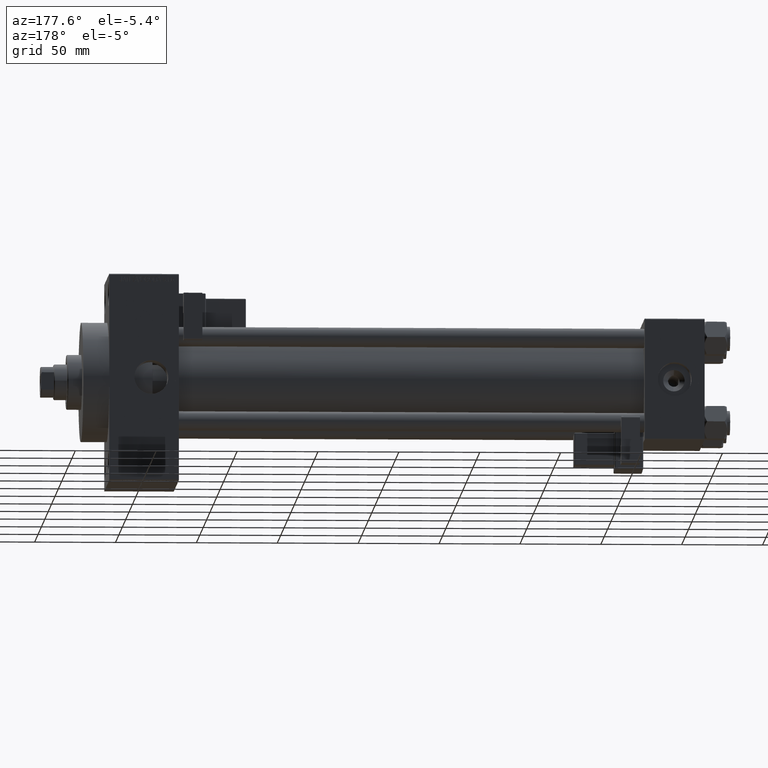
[diagram: clean part render]
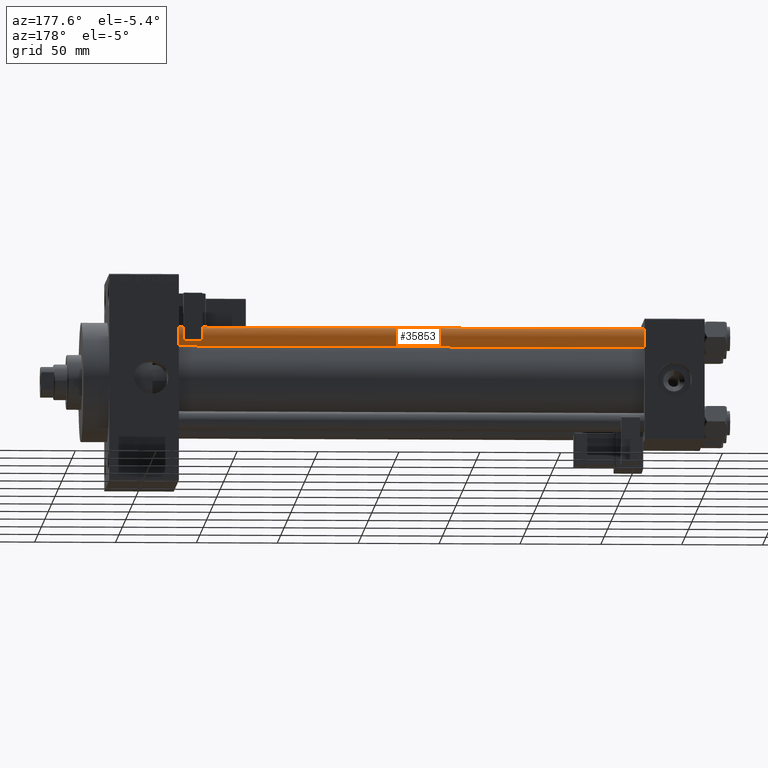
[diagram: same view with one face highlighted and labeled with its STEP entity id]
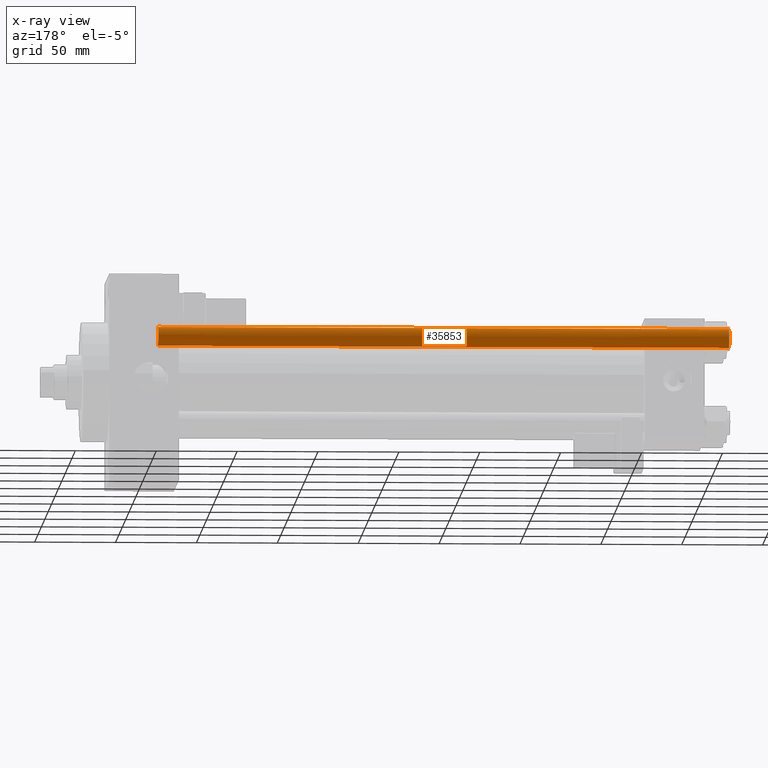
[diagram: x-ray of the same camera — body ghosted, the highlighted face saturated]
A machine part, auxiliary view. The second image highlights one B-rep face of the part: STEP entity #35853.
The next image is the same camera in x-ray: the body ghosted, the highlighted face saturated — about 0% of this face is hidden behind the body in this view.
In plain terms, the highlighted cylindrical surface (edge-blend (fillet) strip) has radius 6 mm, axis along (-1, -0, 0).
Its self-contained STEP definition (entity closure, byte-faithful):
#1677 = EDGE_CURVE ( 'NONE', #22605, #45160, #37135, .T. ) ;
#2137 = CARTESIAN_POINT ( 'NONE',  ( -6.000000000000000888, 0.000000000000000000, 354.0000000000000000 ) ) ;
#2474 = DIRECTION ( 'NONE',  ( 0.000000000000000000, 0.000000000000000000, -1.000000000000000000 ) ) ;
#2606 = CYLINDRICAL_SURFACE ( 'NONE', #43205, 6.000000000000000888 ) ;
#3254 = VECTOR ( 'NONE', #36420, 1000.000000000000000 ) ;
#3346 = CARTESIAN_POINT ( 'NONE',  ( 0.000000000000000000, 0.000000000000000000, 0.5000000000000559552 ) ) ;
#3447 = CARTESIAN_POINT ( 'NONE',  ( 6.000000000000000888, 7.347880794884120722E-16, 0.5000000000000559552 ) ) ;
#4390 = LINE ( 'NONE', #28349, #3254 ) ;
#5996 = CARTESIAN_POINT ( 'NONE',  ( 0.000000000000000000, 0.000000000000000000, 354.0000000000000000 ) ) ;
#6371 = ORIENTED_EDGE ( 'NONE', *, *, #22230, .T. ) ;
#7379 = VECTOR ( 'NONE', #14139, 1000.000000000000000 ) ;
#7777 = CARTESIAN_POINT ( 'NONE',  ( -6.000000000000000888, 0.000000000000000000, 353.5000000000000000 ) ) ;
#9364 = EDGE_CURVE ( 'NONE', #20439, #32999, #34469, .T. ) ;
#10432 = DIRECTION ( 'NONE',  ( -1.000000000000000000, 0.000000000000000000, 0.000000000000000000 ) ) ;
#10497 = ORIENTED_EDGE ( 'NONE', *, *, #9364, .T. ) ;
#12712 = CARTESIAN_POINT ( 'NONE',  ( 6.000000000000000888, 7.347880794884120722E-16, 353.5000000000000000 ) ) ;
#14139 = DIRECTION ( 'NONE',  ( -0.000000000000000000, -0.000000000000000000, -1.000000000000000000 ) ) ;
#16457 = EDGE_LOOP ( 'NONE', ( #10497, #6371, #40092, #18746 ) ) ;
#18016 = AXIS2_PLACEMENT_3D ( 'NONE', #3346, #19244, #19491 ) ;
#18746 = ORIENTED_EDGE ( 'NONE', *, *, #24936, .F. ) ;
#19244 = DIRECTION ( 'NONE',  ( -0.000000000000000000, -0.000000000000000000, 1.000000000000000000 ) ) ;
#19491 = DIRECTION ( 'NONE',  ( 1.000000000000000000, 0.000000000000000000, 0.000000000000000000 ) ) ;
#19509 = AXIS2_PLACEMENT_3D ( 'NONE', #38152, #2474, #50108 ) ;
#20439 = VERTEX_POINT ( 'NONE', #7777 ) ;
#22230 = EDGE_CURVE ( 'NONE', #32999, #22605, #4390, .T. ) ;
#22605 = VERTEX_POINT ( 'NONE', #3447 ) ;
#24936 = EDGE_CURVE ( 'NONE', #20439, #45160, #49776, .T. ) ;
#26049 = FACE_OUTER_BOUND ( 'NONE', #16457, .T. ) ;
#28349 = CARTESIAN_POINT ( 'NONE',  ( 6.000000000000000888, 7.347880794884120722E-16, 354.0000000000000000 ) ) ;
#32999 = VERTEX_POINT ( 'NONE', #12712 ) ;
#34469 = CIRCLE ( 'NONE', #19509, 6.000000000000000888 ) ;
#35853 = ADVANCED_FACE ( 'NONE', ( #26049 ), #2606, .T. ) ;
#36420 = DIRECTION ( 'NONE',  ( -0.000000000000000000, -0.000000000000000000, -1.000000000000000000 ) ) ;
#37135 = CIRCLE ( 'NONE', #18016, 6.000000000000000888 ) ;
#38152 = CARTESIAN_POINT ( 'NONE',  ( 0.000000000000000000, 0.000000000000000000, 353.5000000000000000 ) ) ;
#39299 = CARTESIAN_POINT ( 'NONE',  ( -6.000000000000000888, 0.000000000000000000, 0.5000000000000559552 ) ) ;
#40092 = ORIENTED_EDGE ( 'NONE', *, *, #1677, .T. ) ;
#43205 = AXIS2_PLACEMENT_3D ( 'NONE', #5996, #50240, #10432 ) ;
#45160 = VERTEX_POINT ( 'NONE', #39299 ) ;
#49776 = LINE ( 'NONE', #2137, #7379 ) ;
#50108 = DIRECTION ( 'NONE',  ( 1.000000000000000000, 0.000000000000000000, 0.000000000000000000 ) ) ;
#50240 = DIRECTION ( 'NONE',  ( -0.000000000000000000, -0.000000000000000000, -1.000000000000000000 ) ) ;